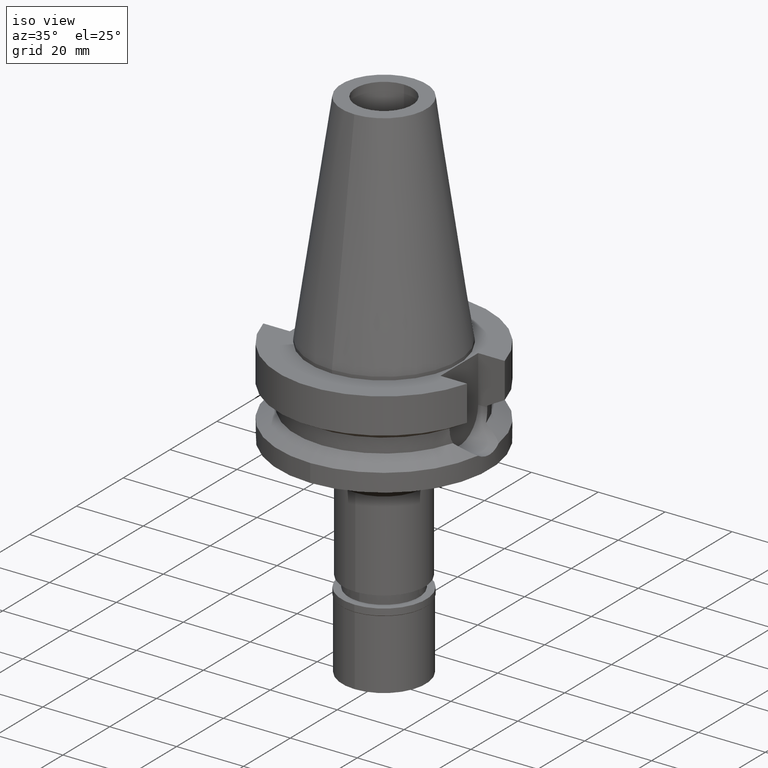
[diagram: clean part render]
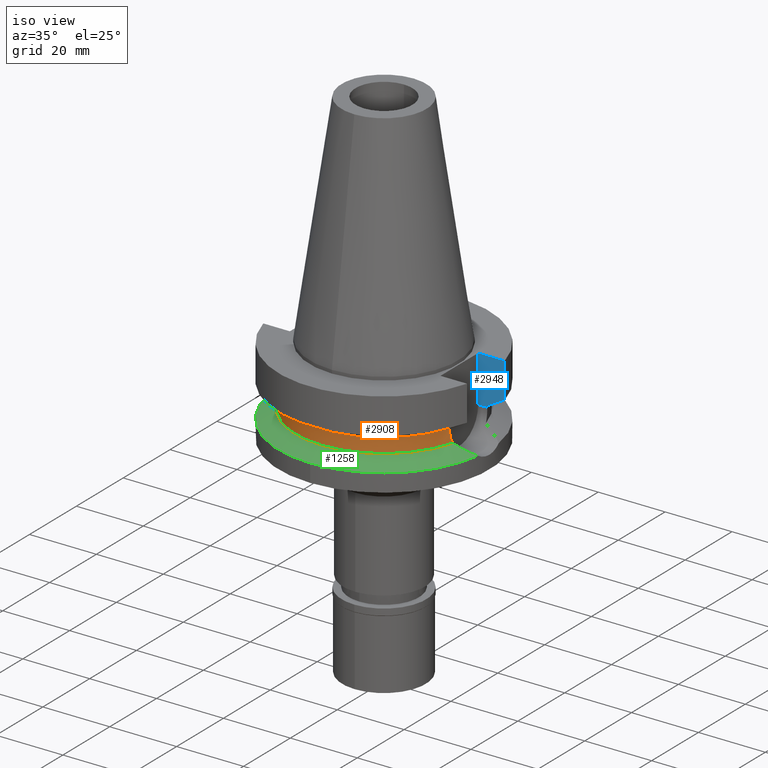
[diagram: same view with three faces highlighted in distinct colors, each labeled with its STEP entity id]
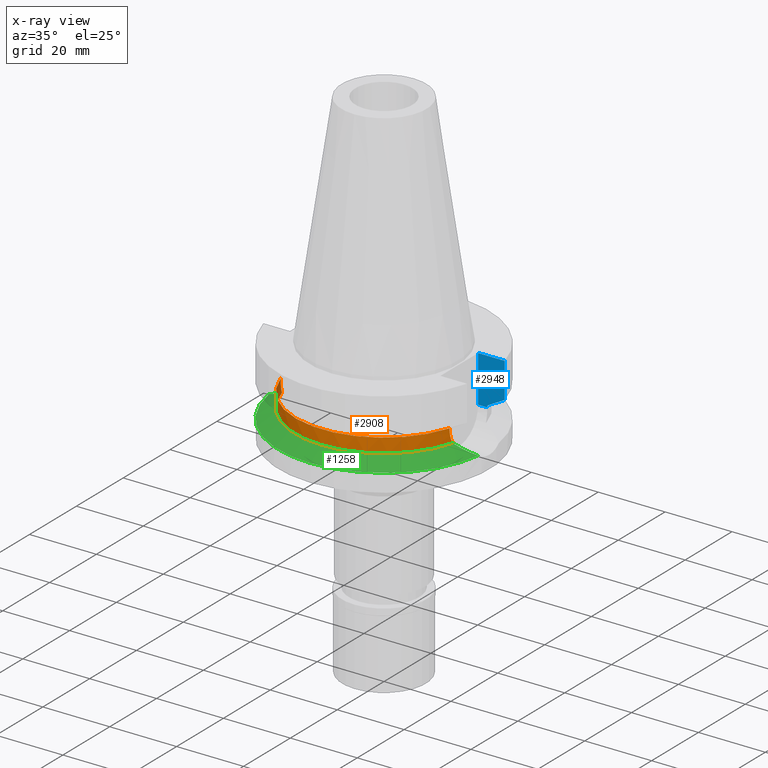
[diagram: x-ray of the same camera — body ghosted, the three highlighted faces saturated]
A machine part, iso view with three faces highlighted in distinct colors.
The next image is the same camera in x-ray (body ghosted, the three faces saturated) — at least one of them is partly hidden behind the body in this view.
Their STEP definitions:

[orange] entity #2908 — the highlighted cylindrical surface (partial cylindrical patch) has radius 26.5 mm, axis along (0, 0, -1).
#40 = CARTESIAN_POINT ( 'NONE',  ( -25.34388450889786526, -7.742333382928201502, -17.15666984720025923 ) ) ;
#42 = AXIS2_PLACEMENT_3D ( 'NONE', #1015, #1977, #793 ) ;
#56 = ORIENTED_EDGE ( 'NONE', *, *, #695, .F. ) ;
#78 = CARTESIAN_POINT ( 'NONE',  ( 25.31950905643224914, -7.821515286679936452, -16.85442525727312102 ) ) ;
#107 = CARTESIAN_POINT ( 'NONE',  ( -25.32844777903620681, -7.792527725354048584, -16.96974754110885897 ) ) ;
#136 = CARTESIAN_POINT ( 'NONE',  ( -25.24772266957999634, -8.049999999999997158, -15.58999736273356085 ) ) ;
#232 = VERTEX_POINT ( 'NONE', #760 ) ;
#264 = EDGE_CURVE ( 'NONE', #2787, #393, #1617, .T. ) ;
#387 = CARTESIAN_POINT ( 'NONE',  ( 25.24772266958000344, -8.050000000000000711, -14.45225699861000024 ) ) ;
#393 = VERTEX_POINT ( 'NONE', #996 ) ;
#421 = CIRCLE ( 'NONE', #2384, 26.50000000000000000 ) ;
#468 = CARTESIAN_POINT ( 'NONE',  ( 0.0000000000000000000, 0.0000000000000000000, 0.0000000000000000000 ) ) ;
#519 = VERTEX_POINT ( 'NONE', #387 ) ;
#582 = CARTESIAN_POINT ( 'NONE',  ( -25.37573308857943744, -7.637710303739495110, -17.49818662950806569 ) ) ;
#625 = CARTESIAN_POINT ( 'NONE',  ( -25.24772266958000344, -8.050000000000000711, -14.94999999999999929 ) ) ;
#695 = EDGE_CURVE ( 'NONE', #232, #2059, #1847, .T. ) ;
#730 = CARTESIAN_POINT ( 'NONE',  ( 25.31648647172268340, -7.831300037042765894, -16.81378020971402876 ) ) ;
#732 = CYLINDRICAL_SURFACE ( 'NONE', #1179, 26.50000000000000000 ) ;
#760 = CARTESIAN_POINT ( 'NONE',  ( -25.24772266958000344, -8.050000000000000711, -14.94999999999999929 ) ) ;
#789 = CARTESIAN_POINT ( 'NONE',  ( 25.36814761471072188, -7.663830712965397751, -17.48803584493440155 ) ) ;
#793 = DIRECTION ( 'NONE',  ( 0.9527442516822307583, -0.3037735849057093818, 0.0000000000000000000 ) ) ;
#979 = ORIENTED_EDGE ( 'NONE', *, *, #264, .F. ) ;
#996 = CARTESIAN_POINT ( 'NONE',  ( 25.53175183775000079, -7.097862220092999941, -18.74774300138999905 ) ) ;
#1012 = CARTESIAN_POINT ( 'NONE',  ( 25.24772266958000699, -8.050000000000002487, -15.26991324108734283 ) ) ;
#1015 = CARTESIAN_POINT ( 'NONE',  ( 0.0000000000000000000, 0.0000000000000000000, -14.45225699861000024 ) ) ;
#1027 = CARTESIAN_POINT ( 'NONE',  ( 25.31202572170775156, -7.845729406580137066, -16.75279821057739937 ) ) ;
#1028 = DIRECTION ( 'NONE',  ( 0.0000000000000000000, 0.0000000000000000000, 1.000000000000000000 ) ) ;
#1050 = CARTESIAN_POINT ( 'NONE',  ( -25.44392837589918699, -7.408239565059870024, -18.11709494172737323 ) ) ;
#1071 = CARTESIAN_POINT ( 'NONE',  ( -25.32550670071060850, -7.802071535306276395, -16.93256103013005287 ) ) ;
#1100 = EDGE_CURVE ( 'NONE', #1942, #232, #1510, .T. ) ;
#1162 = DIRECTION ( 'NONE',  ( 0.0000000000000000000, -1.000000000000000000, 0.0000000000000000000 ) ) ;
#1179 = AXIS2_PLACEMENT_3D ( 'NONE', #468, #1227, #1162 ) ;
#1212 = FACE_OUTER_BOUND ( 'NONE', #1735, .T. ) ;
#1227 = DIRECTION ( 'NONE',  ( 0.0000000000000000000, 0.0000000000000000000, -1.000000000000000000 ) ) ;
#1259 = VECTOR ( 'NONE', #1285, 1000.000000000000114 ) ;
#1285 = DIRECTION ( 'NONE',  ( 1.013424770997036100E-06, 3.178469853868110464E-06, -0.9999999999944351181 ) ) ;
#1308 = CARTESIAN_POINT ( 'NONE',  ( -25.35412323723021899, -7.708830947932256983, -17.27007949472962167 ) ) ;
#1479 = CARTESIAN_POINT ( 'NONE',  ( 25.27268336911708602, -7.971811480182260823, -16.08115959834934827 ) ) ;
#1491 = LINE ( 'NONE', #2435, #1259 ) ;
#1499 = CARTESIAN_POINT ( 'NONE',  ( -25.32419709970849198, -7.806318959900148791, -16.91578803901756345 ) ) ;
#1510 = B_SPLINE_CURVE_WITH_KNOTS ( 'NONE', 3,
 ( #2745, #2206, #1050, #2977, #582, #1308, #40, #2266, #107, #1071, #1499, #2031, #136, #625 ),
 .UNSPECIFIED., .F., .F.,
 ( 4, 2, 2, 1, 1, 2, 2, 4 ),
 ( 0.0000000000000000000, 0.2499999999999754641, 0.3749999999999630851, 0.4374999999999556466, 0.4687499999999517608, 0.4843749999999512057, 0.4999999999999505951, 1.000000000000000000 ),
 .UNSPECIFIED. ) ;
#1617 = B_SPLINE_CURVE_WITH_KNOTS ( 'NONE', 3,
 ( #2004, #1012, #1973, #1479, #2467, #1743, #1728, #1027, #730, #78, #2720, #789, #1697, #1988 ),
 .UNSPECIFIED., .F., .F.,
 ( 4, 2, 2, 1, 1, 2, 2, 4 ),
 ( 0.0000000000000000000, 0.2499999999999894529, 0.3749999999999841238, 0.4374999999999827360, 0.4687499999999818479, 0.4843749999999814038, 0.4999999999999809042, 1.000000000000000000 ),
 .UNSPECIFIED. ) ;
#1697 = CARTESIAN_POINT ( 'NONE',  ( 25.43786330456364908, -7.435589081429985647, -18.11654211998960307 ) ) ;
#1728 = CARTESIAN_POINT ( 'NONE',  ( 25.30212919435223640, -7.877667573970346560, -16.61042047323940452 ) ) ;
#1735 = EDGE_LOOP ( 'NONE', ( #2808, #2583, #979, #2132, #1905, #56 ) ) ;
#1743 = CARTESIAN_POINT ( 'NONE',  ( 25.29452398121202350, -7.902090651792936349, -16.48828405102941375 ) ) ;
#1847 = LINE ( 'NONE', #2346, #2472 ) ;
#1856 = EDGE_CURVE ( 'NONE', #519, #2059, #3064, .T. ) ;
#1905 = ORIENTED_EDGE ( 'NONE', *, *, #1856, .T. ) ;
#1942 = VERTEX_POINT ( 'NONE', #2054 ) ;
#1973 = CARTESIAN_POINT ( 'NONE',  ( 25.25396284446426876, -8.030907492774099765, -15.59360398733918451 ) ) ;
#1977 = DIRECTION ( 'NONE',  ( 0.0000000000000000000, 0.0000000000000000000, -1.000000000000000000 ) ) ;
#1988 = CARTESIAN_POINT ( 'NONE',  ( 25.53175183775000079, -7.097862220092999941, -18.74774300138999905 ) ) ;
#2004 = CARTESIAN_POINT ( 'NONE',  ( 25.24772266958000344, -8.050000000000000711, -14.94999999999999929 ) ) ;
#2031 = CARTESIAN_POINT ( 'NONE',  ( -25.27269391207093463, -7.973288729732005642, -16.24537813257536811 ) ) ;
#2054 = CARTESIAN_POINT ( 'NONE',  ( -25.53175183775000079, -7.097862220092999941, -18.74774300138999905 ) ) ;
#2059 = VERTEX_POINT ( 'NONE', #2169 ) ;
#2132 = ORIENTED_EDGE ( 'NONE', *, *, #2255, .F. ) ;
#2169 = CARTESIAN_POINT ( 'NONE',  ( -25.24772413263999837, -8.049995411297999226, -14.45229206229000063 ) ) ;
#2206 = CARTESIAN_POINT ( 'NONE',  ( -25.48482038766597313, -7.266679548433788050, -18.43222872448825100 ) ) ;
#2255 = EDGE_CURVE ( 'NONE', #519, #2787, #1491, .T. ) ;
#2266 = CARTESIAN_POINT ( 'NONE',  ( -25.33293017119234847, -7.777974374871667429, -17.02562462713745361 ) ) ;
#2346 = CARTESIAN_POINT ( 'NONE',  ( -25.24772266958000344, -8.050000000000000711, -14.94999999999999929 ) ) ;
#2375 = CARTESIAN_POINT ( 'NONE',  ( 25.24772266958000344, -8.050000000000000711, -14.94999999999999929 ) ) ;
#2384 = AXIS2_PLACEMENT_3D ( 'NONE', #2969, #1028, #2987 ) ;
#2435 = CARTESIAN_POINT ( 'NONE',  ( 25.24772216514000434, -8.050001582100001940, -14.45224490997999922 ) ) ;
#2467 = CARTESIAN_POINT ( 'NONE',  ( 25.28048358772242210, -7.947040743794927309, -16.24400980664070460 ) ) ;
#2472 = VECTOR ( 'NONE', #2803, 999.9999999999998863 ) ;
#2583 = ORIENTED_EDGE ( 'NONE', *, *, #3046, .T. ) ;
#2720 = CARTESIAN_POINT ( 'NONE',  ( 25.32118155423751205, -7.816096717212928091, -16.87652453452369627 ) ) ;
#2745 = CARTESIAN_POINT ( 'NONE',  ( -25.53175183775000079, -7.097862220092999941, -18.74774300138999905 ) ) ;
#2787 = VERTEX_POINT ( 'NONE', #2375 ) ;
#2803 = DIRECTION ( 'NONE',  ( -2.939603013672936346E-06, 9.219668141774800893E-06, 0.9999999999531783423 ) ) ;
#2808 = ORIENTED_EDGE ( 'NONE', *, *, #1100, .F. ) ;
#2908 = ADVANCED_FACE ( 'NONE', ( #1212 ), #732, .T. ) ;
#2969 = CARTESIAN_POINT ( 'NONE',  ( 0.0000000000000000000, 0.0000000000000000000, -18.74774300138999905 ) ) ;
#2977 = CARTESIAN_POINT ( 'NONE',  ( -25.39164951572487894, -7.584807667336962211, -17.65197957159464082 ) ) ;
#2987 = DIRECTION ( 'NONE',  ( 0.0000000000000000000, -1.000000000000000000, 0.0000000000000000000 ) ) ;
#3046 = EDGE_CURVE ( 'NONE', #1942, #393, #421, .T. ) ;
#3064 = CIRCLE ( 'NONE', #42, 26.50000000000000711 ) ;

[blue] entity #2948 — the highlighted planar face has unit normal (0, 1, 0).
#189 = VERTEX_POINT ( 'NONE', #716 ) ;
#193 = VERTEX_POINT ( 'NONE', #2631 ) ;
#206 = LINE ( 'NONE', #2674, #1281 ) ;
#226 = VERTEX_POINT ( 'NONE', #3113 ) ;
#227 = CARTESIAN_POINT ( 'NONE',  ( 22.50000000000000000, 8.050000000000000711, -14.94999999999999929 ) ) ;
#230 = VERTEX_POINT ( 'NONE', #2403 ) ;
#429 = EDGE_CURVE ( 'NONE', #230, #1161, #2531, .T. ) ;
#530 = DIRECTION ( 'NONE',  ( 0.0000000000000000000, 0.0000000000000000000, -1.000000000000000000 ) ) ;
#608 = ORIENTED_EDGE ( 'NONE', *, *, #429, .F. ) ;
#686 = ORIENTED_EDGE ( 'NONE', *, *, #2815, .T. ) ;
#716 = CARTESIAN_POINT ( 'NONE',  ( 30.45402291411999940, 8.049999276161001305, -11.56551217212999916 ) ) ;
#780 = CARTESIAN_POINT ( 'NONE',  ( 28.57292324892950219, 8.049998553265025336, -12.61549607903367409 ) ) ;
#873 = EDGE_CURVE ( 'NONE', #1163, #193, #3091, .T. ) ;
#903 = VECTOR ( 'NONE', #530, 1000.000000000000000 ) ;
#967 = EDGE_CURVE ( 'NONE', #189, #226, #1778, .T. ) ;
#1004 = CARTESIAN_POINT ( 'NONE',  ( 26.83754611702247317, 8.049990813108566456, -13.57774890615205088 ) ) ;
#1013 = PLANE ( 'NONE',  #2232 ) ;
#1029 = LINE ( 'NONE', #2690, #903 ) ;
#1115 = CARTESIAN_POINT ( 'NONE',  ( 30.45402272279000044, 8.050000000000000711, -1.000000000000000000 ) ) ;
#1161 = VERTEX_POINT ( 'NONE', #1115 ) ;
#1163 = VERTEX_POINT ( 'NONE', #2074 ) ;
#1178 = DIRECTION ( 'NONE',  ( 2.939387362122955592E-06, -9.218991754461859647E-06, 0.9999999999531850037 ) ) ;
#1245 = ORIENTED_EDGE ( 'NONE', *, *, #873, .T. ) ;
#1281 = VECTOR ( 'NONE', #1178, 1000.000000000000227 ) ;
#1302 = DIRECTION ( 'NONE',  ( -0.0000000000000000000, 1.000000000000000000, 0.0000000000000000000 ) ) ;
#1411 = VECTOR ( 'NONE', #2371, 1000.000000000000114 ) ;
#1415 = CARTESIAN_POINT ( 'NONE',  ( 30.45402291411999940, 8.049999276161001305, -11.56551217212999916 ) ) ;
#1457 = ORIENTED_EDGE ( 'NONE', *, *, #2200, .T. ) ;
#1509 = DIRECTION ( 'NONE',  ( 1.000000000000000000, 0.0000000000000000000, 0.0000000000000000000 ) ) ;
#1532 = CARTESIAN_POINT ( 'NONE',  ( 25.24772413254000014, 8.049995411634998987, -14.45229205970999864 ) ) ;
#1540 = FACE_OUTER_BOUND ( 'NONE', #2783, .T. ) ;
#1763 = ORIENTED_EDGE ( 'NONE', *, *, #1833, .T. ) ;
#1775 = CARTESIAN_POINT ( 'NONE',  ( 31.50000000000000000, 8.050000000000000711, -14.94999999999999929 ) ) ;
#1778 = B_SPLINE_CURVE_WITH_KNOTS ( 'NONE', 3,
 ( #2457, #780, #1004, #1532 ),
 .UNSPECIFIED., .F., .F.,
 ( 4, 4 ),
 ( 0.0000000000000000000, 1.000000000000000000 ),
 .UNSPECIFIED. ) ;
#1833 = EDGE_CURVE ( 'NONE', #230, #1163, #1029, .T. ) ;
#1868 = VECTOR ( 'NONE', #3002, 1000.000000000000000 ) ;
#2024 = CARTESIAN_POINT ( 'NONE',  ( 22.50000000000000000, 8.050000000000000711, -1.000000000000000000 ) ) ;
#2074 = CARTESIAN_POINT ( 'NONE',  ( 22.50000000000000000, 8.050000000000000711, -14.94999999999999929 ) ) ;
#2191 = DIRECTION ( 'NONE',  ( 1.000000000000000000, -1.292966614911000084E-14, 3.361713198768000432E-14 ) ) ;
#2200 = EDGE_CURVE ( 'NONE', #189, #1161, #2610, .T. ) ;
#2232 = AXIS2_PLACEMENT_3D ( 'NONE', #1775, #1302, #1509 ) ;
#2271 = VECTOR ( 'NONE', #2191, 1000.000000000000000 ) ;
#2371 = DIRECTION ( 'NONE',  ( -1.810926754471990298E-08, 6.850955855842962567E-08, 0.9999999999999974465 ) ) ;
#2403 = CARTESIAN_POINT ( 'NONE',  ( 22.50000000000000000, 8.050000000000000711, -1.000000000000000000 ) ) ;
#2457 = CARTESIAN_POINT ( 'NONE',  ( 30.45402291411999940, 8.049999276161001305, -11.56551217212999916 ) ) ;
#2531 = LINE ( 'NONE', #2024, #1868 ) ;
#2610 = LINE ( 'NONE', #1415, #1411 ) ;
#2631 = CARTESIAN_POINT ( 'NONE',  ( 25.24772266958000344, 8.050000000000000711, -14.94999999999999929 ) ) ;
#2674 = CARTESIAN_POINT ( 'NONE',  ( 25.24772266958000344, 8.050000000000000711, -14.94999999999999929 ) ) ;
#2690 = CARTESIAN_POINT ( 'NONE',  ( 22.50000000000000000, 8.050000000000000711, -1.000000000000000000 ) ) ;
#2783 = EDGE_LOOP ( 'NONE', ( #2821, #1457, #608, #1763, #1245, #686 ) ) ;
#2815 = EDGE_CURVE ( 'NONE', #193, #226, #206, .T. ) ;
#2821 = ORIENTED_EDGE ( 'NONE', *, *, #967, .F. ) ;
#2948 = ADVANCED_FACE ( 'NONE', ( #1540 ), #1013, .F. ) ;
#3002 = DIRECTION ( 'NONE',  ( 1.000000000000000000, -3.506251283225999947E-14, 0.0000000000000000000 ) ) ;
#3091 = LINE ( 'NONE', #227, #2271 ) ;
#3113 = CARTESIAN_POINT ( 'NONE',  ( 25.24772413254000014, 8.049995411634998987, -14.45229205970999864 ) ) ;

[green] entity #1258 — the highlighted conical surface has half-angle 60 deg.
#43 = AXIS2_PLACEMENT_3D ( 'NONE', #514, #1956, #1478 ) ;
#60 = CARTESIAN_POINT ( 'NONE',  ( 0.0000000000000000000, 0.0000000000000000000, -20.19111867435999841 ) ) ;
#147 = CARTESIAN_POINT ( 'NONE',  ( 28.55955000976707225, -6.015948646950840306, -20.29867121279436759 ) ) ;
#231 = DIRECTION ( 'NONE',  ( 0.0000000000000000000, -1.000000000000000000, 0.0000000000000000000 ) ) ;
#354 = CARTESIAN_POINT ( 'NONE',  ( 28.50267039010248737, -6.041839654186622610, -20.26963381251383112 ) ) ;
#381 = CARTESIAN_POINT ( 'NONE',  ( -27.52069676390380337, -6.449708394305694092, -19.76703044065328285 ) ) ;
#393 = VERTEX_POINT ( 'NONE', #996 ) ;
#412 = CARTESIAN_POINT ( 'NONE',  ( -28.33621220709153476, -6.118776643152094685, -20.18388316065392729 ) ) ;
#421 = CIRCLE ( 'NONE', #2384, 26.50000000000000000 ) ;
#427 = CARTESIAN_POINT ( 'NONE',  ( -31.17899877608999759, -4.485536235554000051, -21.63449434733000132 ) ) ;
#487 = ORIENTED_EDGE ( 'NONE', *, *, #3046, .F. ) ;
#514 = CARTESIAN_POINT ( 'NONE',  ( 0.0000000000000000000, 0.0000000000000000000, -21.63449434733000132 ) ) ;
#589 = CARTESIAN_POINT ( 'NONE',  ( 28.96890591702771189, -5.823332490732698652, -20.50761203838512969 ) ) ;
#634 = CARTESIAN_POINT ( 'NONE',  ( 26.74230105704615212, -6.765102983308890927, -19.36965954873918605 ) ) ;
#647 = CARTESIAN_POINT ( 'NONE',  ( 28.61907737801393026, -5.988629771322139028, -20.32905886909423288 ) ) ;
#713 = EDGE_CURVE ( 'NONE', #2000, #1942, #1195, .T. ) ;
#766 = DIRECTION ( 'NONE',  ( 0.9898094849552905306, -0.1423979757318985240, 0.0000000000000000000 ) ) ;
#842 = CARTESIAN_POINT ( 'NONE',  ( 30.43974434727169154, -5.011329525152615538, -21.25787402746842858 ) ) ;
#872 = CARTESIAN_POINT ( 'NONE',  ( -25.53175183775000079, -7.097862220092999941, -18.74774300138999905 ) ) ;
#878 = CARTESIAN_POINT ( 'NONE',  ( -31.17899877608999759, -4.485536235554000051, -21.63449434733000132 ) ) ;
#892 = CARTESIAN_POINT ( 'NONE',  ( 29.76992184830378108, -5.404258248610491755, -20.91627641584803143 ) ) ;
#996 = CARTESIAN_POINT ( 'NONE',  ( 25.53175183775000079, -7.097862220092999941, -18.74774300138999905 ) ) ;
#1028 = DIRECTION ( 'NONE',  ( 0.0000000000000000000, 0.0000000000000000000, 1.000000000000000000 ) ) ;
#1057 = EDGE_CURVE ( 'NONE', #1692, #2708, #1522, .T. ) ;
#1133 = CARTESIAN_POINT ( 'NONE',  ( -26.57802956836618336, -6.789660513847596057, -19.28484685451077496 ) ) ;
#1195 = B_SPLINE_CURVE_WITH_KNOTS ( 'NONE', 3,
 ( #427, #3030, #1608, #412, #1345, #2792, #1883, #2841, #2129, #381, #1405, #1377, #2542, #2334, #1133, #2077, #872 ),
 .UNSPECIFIED., .F., .F.,
 ( 4, 2, 2, 1, 2, 2, 1, 1, 2, 4 ),
 ( 0.0000000000000000000, 0.4999999999999757971, 0.6249999999999699130, 0.6562499999999694689, 0.6640624999999694689, 0.6679687499999693578, 0.6718749999999691358, 0.6874999999999703570, 0.7499999999999771294, 1.000000000000000000 ),
 .UNSPECIFIED. ) ;
#1258 = ADVANCED_FACE ( 'NONE', ( #1751 ), #1368, .T. ) ;
#1271 = ORIENTED_EDGE ( 'NONE', *, *, #2239, .F. ) ;
#1336 = CARTESIAN_POINT ( 'NONE',  ( 29.53381090525230945, -5.534518581966118234, -20.79584028178322797 ) ) ;
#1345 = CARTESIAN_POINT ( 'NONE',  ( -28.07193205864459529, -6.231922882289261167, -20.04874902591523522 ) ) ;
#1368 = CONICAL_SURFACE ( 'NONE', #2828, 29.00000000000000000, 1.047197551196400456 ) ;
#1377 = CARTESIAN_POINT ( 'NONE',  ( -27.47077133296956575, -6.468713814045080390, -19.74152121614970667 ) ) ;
#1405 = CARTESIAN_POINT ( 'NONE',  ( -27.50644319627619439, -6.455141102053258528, -19.75974780943246856 ) ) ;
#1469 = AXIS2_PLACEMENT_3D ( 'NONE', #2476, #2996, #766 ) ;
#1478 = DIRECTION ( 'NONE',  ( 0.0000000000000000000, -1.000000000000000000, 0.0000000000000000000 ) ) ;
#1522 = CIRCLE ( 'NONE', #1469, 31.50000000000001421 ) ;
#1554 = CARTESIAN_POINT ( 'NONE',  ( 28.73708458522805387, -5.933788482210076154, -20.38929521476420703 ) ) ;
#1575 = B_SPLINE_CURVE_WITH_KNOTS ( 'NONE', 3,
 ( #2040, #3003, #842, #892, #1336, #2812, #589, #1554, #647, #147, #2516, #2578, #1587, #354, #1808, #634, #2771 ),
 .UNSPECIFIED., .F., .F.,
 ( 4, 2, 2, 1, 1, 1, 1, 1, 2, 2, 4 ),
 ( 0.0000000000000000000, 0.2500000000000449085, 0.3750000000000676126, 0.4375000000000796030, 0.4687500000000858202, 0.4843750000000888178, 0.4921875000000909273, 0.4960937500000919265, 0.4980468750000919820, 0.5000000000000920375, 1.000000000000000000 ),
 .UNSPECIFIED. ) ;
#1587 = CARTESIAN_POINT ( 'NONE',  ( 28.50824919611213915, -6.039309418026864940, -20.27248188817796049 ) ) ;
#1608 = CARTESIAN_POINT ( 'NONE',  ( -29.60901824762036583, -5.537298419560576335, -20.83457262537367782 ) ) ;
#1692 = VERTEX_POINT ( 'NONE', #3043 ) ;
#1751 = FACE_OUTER_BOUND ( 'NONE', #2376, .T. ) ;
#1808 = CARTESIAN_POINT ( 'NONE',  ( 27.73249944460525640, -6.390863620335318629, -19.87644651522779782 ) ) ;
#1883 = CARTESIAN_POINT ( 'NONE',  ( -27.64304919019901163, -6.402745057013161656, -19.82954646970578239 ) ) ;
#1942 = VERTEX_POINT ( 'NONE', #2054 ) ;
#1948 = EDGE_CURVE ( 'NONE', #1692, #393, #1575, .T. ) ;
#1956 = DIRECTION ( 'NONE',  ( 0.0000000000000000000, 0.0000000000000000000, -1.000000000000000000 ) ) ;
#2000 = VERTEX_POINT ( 'NONE', #878 ) ;
#2020 = ORIENTED_EDGE ( 'NONE', *, *, #713, .F. ) ;
#2040 = CARTESIAN_POINT ( 'NONE',  ( 31.17899877608999759, -4.485536235554000051, -21.63449434733000132 ) ) ;
#2044 = CARTESIAN_POINT ( 'NONE',  ( 0.0000000000000000000, -31.50000000000000000, -21.63449434733000132 ) ) ;
#2054 = CARTESIAN_POINT ( 'NONE',  ( -25.53175183775000079, -7.097862220092999941, -18.74774300138999905 ) ) ;
#2077 = CARTESIAN_POINT ( 'NONE',  ( -26.07043266276224713, -6.949788091967453951, -19.02448888951241557 ) ) ;
#2081 = ORIENTED_EDGE ( 'NONE', *, *, #1948, .T. ) ;
#2129 = CARTESIAN_POINT ( 'NONE',  ( -27.52945918373637824, -6.446363194736836277, -19.77150731395940042 ) ) ;
#2239 = EDGE_CURVE ( 'NONE', #2708, #2000, #2717, .T. ) ;
#2334 = CARTESIAN_POINT ( 'NONE',  ( -27.17367080111070976, -6.578886472435530486, -19.58963853434618585 ) ) ;
#2376 = EDGE_LOOP ( 'NONE', ( #1271, #2982, #2081, #487, #2020 ) ) ;
#2384 = AXIS2_PLACEMENT_3D ( 'NONE', #2969, #1028, #2987 ) ;
#2476 = CARTESIAN_POINT ( 'NONE',  ( 0.0000000000000000000, 0.0000000000000000000, -21.63449434733000132 ) ) ;
#2516 = CARTESIAN_POINT ( 'NONE',  ( 28.52965543379519175, -6.029582002115604134, -20.28341001377820874 ) ) ;
#2542 = CARTESIAN_POINT ( 'NONE',  ( -27.32015267809305215, -6.525527659581608297, -19.66454910925936517 ) ) ;
#2578 = CARTESIAN_POINT ( 'NONE',  ( 28.51681542985744144, -6.035419210652720245, -20.27685506329995846 ) ) ;
#2683 = DIRECTION ( 'NONE',  ( 0.0000000000000000000, 0.0000000000000000000, -1.000000000000000000 ) ) ;
#2708 = VERTEX_POINT ( 'NONE', #2044 ) ;
#2717 = CIRCLE ( 'NONE', #43, 31.50000000000000000 ) ;
#2771 = CARTESIAN_POINT ( 'NONE',  ( 25.53175183775000079, -7.097862220092999941, -18.74774300138999905 ) ) ;
#2792 = CARTESIAN_POINT ( 'NONE',  ( -27.72943319765945702, -6.368808062164681871, -19.87369364855397080 ) ) ;
#2812 = CARTESIAN_POINT ( 'NONE',  ( 29.16041233862176441, -5.727468892904483688, -20.60533068539900015 ) ) ;
#2828 = AXIS2_PLACEMENT_3D ( 'NONE', #60, #2683, #231 ) ;
#2841 = CARTESIAN_POINT ( 'NONE',  ( -27.55571606747087188, -6.436314571764646608, -19.78492291576369055 ) ) ;
#2969 = CARTESIAN_POINT ( 'NONE',  ( 0.0000000000000000000, 0.0000000000000000000, -18.74774300138999905 ) ) ;
#2982 = ORIENTED_EDGE ( 'NONE', *, *, #1057, .F. ) ;
#2987 = DIRECTION ( 'NONE',  ( 0.0000000000000000000, -1.000000000000000000, 0.0000000000000000000 ) ) ;
#2996 = DIRECTION ( 'NONE',  ( 0.0000000000000000000, 0.0000000000000000000, -1.000000000000000000 ) ) ;
#3003 = CARTESIAN_POINT ( 'NONE',  ( 30.83491763105535810, -4.746579811916768143, -21.45932471444996636 ) ) ;
#3030 = CARTESIAN_POINT ( 'NONE',  ( -30.47176003458459448, -5.022096093865752842, -21.27444337534589280 ) ) ;
#3043 = CARTESIAN_POINT ( 'NONE',  ( 31.17899877608999759, -4.485536235554000051, -21.63449434733000132 ) ) ;
#3046 = EDGE_CURVE ( 'NONE', #1942, #393, #421, .T. ) ;